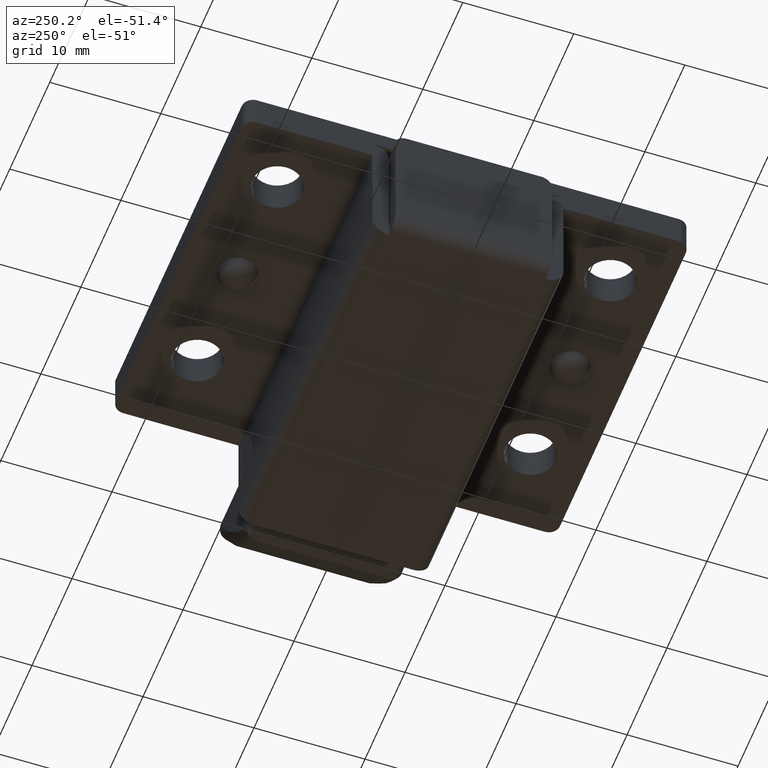
[diagram: clean part render]
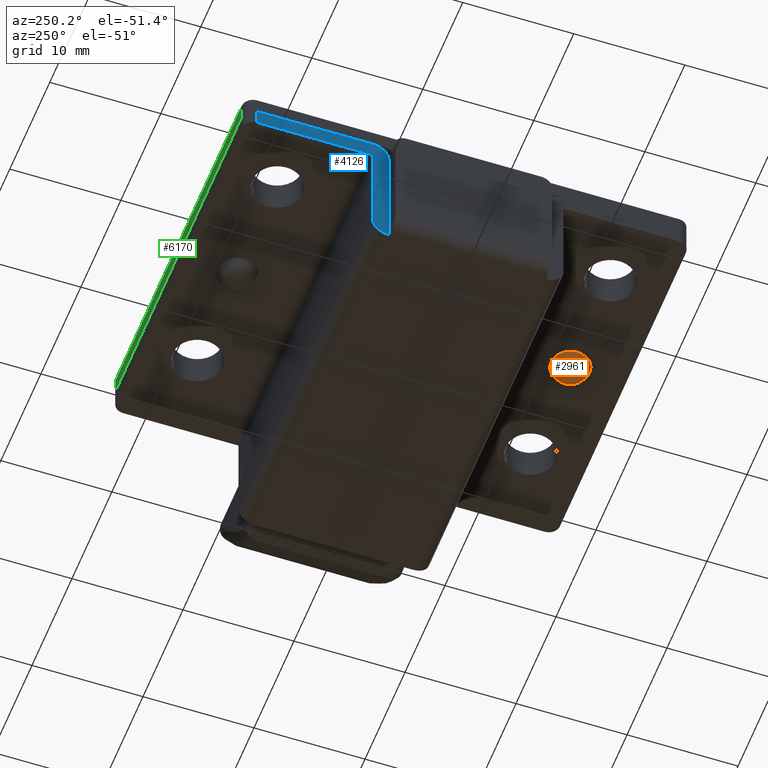
[diagram: same view with three faces highlighted in distinct colors, each labeled with its STEP entity id]
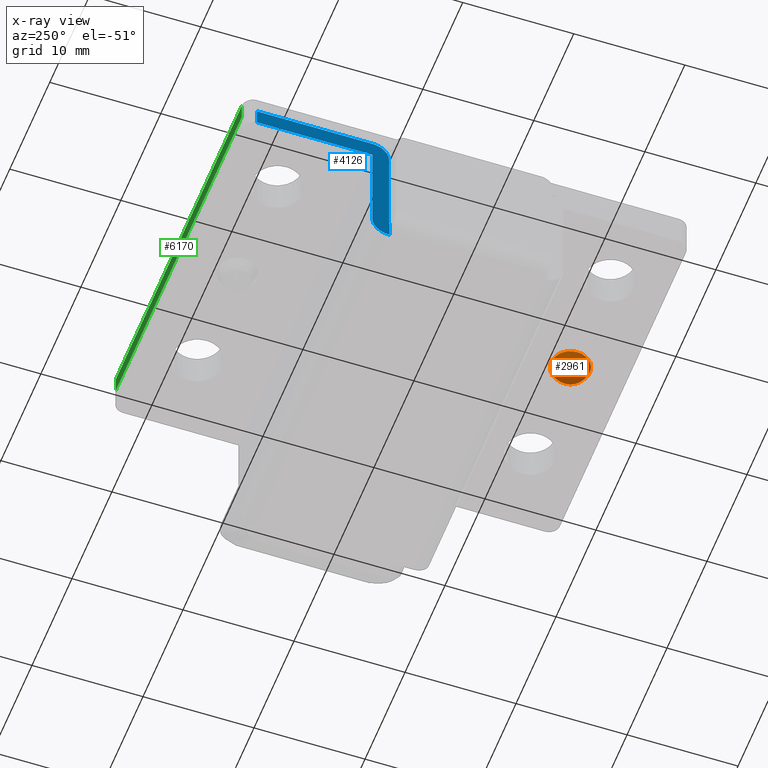
[diagram: x-ray of the same camera — body ghosted, the three highlighted faces saturated]
A machine part, auxiliary view with three faces highlighted in distinct colors.
The next image is the same camera in x-ray (body ghosted, the three faces saturated) — at least one of them is partly hidden behind the body in this view.
Their STEP definitions:

[orange] entity #2961 — the highlighted face is a freeform B-spline surface patch.
#2887=CARTESIAN_POINT('',(-18.825397734370263,-13.674602265603189,10.954616639434517));
#2888=CARTESIAN_POINT('',(-18.396109184514085,-13.207781630918729,10.321527777888795));
#2889=CARTESIAN_POINT('',(-16.603890815432813,-13.207781630918729,10.321527777888795));
#2890=CARTESIAN_POINT('',(-16.174602265576638,-13.674602265603189,10.954616639434517));
#2891=CARTESIAN_POINT('',(-19.292218369054726,-14.103890815459364,10.321527777888795));
#2892=CARTESIAN_POINT('',(-18.883336549900349,-13.616663450073100,8.999999999774133));
#2893=CARTESIAN_POINT('',(-16.116663450046548,-13.616663450073100,8.999999999774133));
#2894=CARTESIAN_POINT('',(-15.707781630892180,-14.103890815459364,10.321527777888795));
#2895=CARTESIAN_POINT('',(-19.292218369054726,-15.896109184540634,10.321527777888795));
#2896=CARTESIAN_POINT('',(-18.883336549900349,-16.383336549926899,8.999999999774133));
#2897=CARTESIAN_POINT('',(-16.116663450046548,-16.383336549926899,8.999999999774133));
#2898=CARTESIAN_POINT('',(-15.707781630892180,-15.896109184540634,10.321527777888795));
#2899=CARTESIAN_POINT('',(-18.825397734370263,-16.325397734396812,10.954616639434517));
#2900=CARTESIAN_POINT('',(-18.396109184514085,-16.792218369081269,10.321527777888795));
#2901=CARTESIAN_POINT('',(-16.603890815432813,-16.792218369081269,10.321527777888795));
#2902=CARTESIAN_POINT('',(-16.174602265576638,-16.325397734396812,10.954616639434517));
#2910=(BOUNDED_SURFACE()B_SPLINE_SURFACE(2,2,((#2887,#2891,#2895,#2899),(#2888,#2892,#2896,#2900),(#2889,#2893,#2897,#2901),(#2890,#2894,#2898,#2902)),.UNSPECIFIED.,.F.,.F.,.U.)B_SPLINE_SURFACE_WITH_KNOTS((3,1,3),(3,1,3),(0.0,2.175301774384770,4.350603548769541),(0.0,2.175301774384765,4.350603548769531),.UNSPECIFIED.)GEOMETRIC_REPRESENTATION_ITEM()RATIONAL_B_SPLINE_SURFACE(((2.087428571856516,1.543714285928258,1.543714285928258,2.087428571856516),(1.543714285928258,1.0,1.0,1.543714285928258),(1.543714285928258,1.0,1.0,1.543714285928258),(2.087428571856516,1.543714285928258,1.543714285928258,2.087428571856516)))REPRESENTATION_ITEM('')SURFACE());
#2911=CARTESIAN_POINT('',(-19.250000000110091,-15.0,10.200000000127860));
#2912=VERTEX_POINT('',#2911);
#2913=CARTESIAN_POINT('',(-15.749999999836810,-15.0,10.200000000127860));
#2914=VERTEX_POINT('',#2913);
#2915=CARTESIAN_POINT('',(-19.250000000110091,-15.0,10.200000000127860));
#2916=CARTESIAN_POINT('',(-19.250099159165352,-14.821021936544470,10.200000000127879));
#2917=CARTESIAN_POINT('',(-19.211216515899249,-14.570534495470170,10.200000000127860));
#2918=CARTESIAN_POINT('',(-19.079563407552332,-14.229265886697840,10.200000000127860));
#2919=CARTESIAN_POINT('',(-18.949172807378162,-14.005542339136390,10.200000000127860));
#2920=CARTESIAN_POINT('',(-18.758076828085422,-13.772680964446200,10.200000000127870));
#2921=CARTESIAN_POINT('',(-18.547912958300859,-13.586854990160051,10.200000000127870));
#2922=CARTESIAN_POINT('',(-18.247206145103839,-13.404079901530100,10.200000000127780));
#2923=CARTESIAN_POINT('',(-17.880505770191590,-13.272836258294310,10.200000000128060));
#2924=CARTESIAN_POINT('',(-17.513944416001092,-13.239028647206400,10.200000000127890));
#2925=CARTESIAN_POINT('',(-17.178489866207101,-13.272093701276200,10.200000000127890));
#2926=CARTESIAN_POINT('',(-16.851558375899721,-13.358212844464751,10.200000000127840));
#2927=CARTESIAN_POINT('',(-16.519456212429940,-13.533121842772010,10.200000000127771));
#2928=CARTESIAN_POINT('',(-16.218475015851588,-13.789561175848560,10.200000000128069));
#2929=CARTESIAN_POINT('',(-16.011710547082849,-14.057879985148320,10.200000000127799));
#2930=CARTESIAN_POINT('',(-15.865013984579161,-14.353876331886850,10.200000000127719));
#2931=CARTESIAN_POINT('',(-15.773240115499821,-14.656403775331381,10.200000000128220));
#2932=CARTESIAN_POINT('',(-15.749983760133359,-14.878309575431230,10.200000000127650));
#2933=CARTESIAN_POINT('',(-15.749999999836810,-15.0,10.200000000127860));
#2934=B_SPLINE_CURVE_WITH_KNOTS('',3,(#2915,#2916,#2917,#2918,#2919,#2920,#2921,#2922,#2923,#2924,#2925,#2926,#2927,#2928,#2929,#2930,#2931,#2932,#2933),.UNSPECIFIED.,.F.,.U.,(4,1,1,1,1,1,1,1,1,1,1,1,1,1,1,1,4),(0.000000160079979,0.536890775910660,0.751653891918446,1.095262674586500,1.310027415817633,1.653646700179849,1.932842878099841,2.362352012072886,2.813337115565695,3.028071031112359,3.371691284798115,3.822702788800471,4.144842982188858,4.552887468905427,4.832075191624460,5.132752333328236,5.497821640538665),.UNSPECIFIED.);
#2935=EDGE_CURVE('',#2912,#2914,#2934,.T.);
#2936=ORIENTED_EDGE('',*,*,#2935,.T.);
#2937=CARTESIAN_POINT('',(-15.749999999836810,-15.0,10.200000000127860));
#2938=CARTESIAN_POINT('',(-15.749967358048311,-15.136008052057900,10.200000000127851));
#2939=CARTESIAN_POINT('',(-15.775171223657191,-15.350747030745261,10.200000000127870));
#2940=CARTESIAN_POINT('',(-15.875030120366381,-15.672847215267071,10.200000000127870));
#2941=CARTESIAN_POINT('',(-15.999500644333260,-15.916393798517211,10.200000000127810));
#2942=CARTESIAN_POINT('',(-16.187489180332818,-16.169872914416729,10.200000000127959));
#2943=CARTESIAN_POINT('',(-16.384417937644251,-16.359678589533310,10.200000000127890));
#2944=CARTESIAN_POINT('',(-16.651778413289591,-16.540692348841279,10.200000000127771));
#2945=CARTESIAN_POINT('',(-16.986427840544650,-16.691563316046910,10.200000000127870));
#2946=CARTESIAN_POINT('',(-17.384903549690499,-16.763227128257370,10.200000000128110));
#2947=CARTESIAN_POINT('',(-17.751066545719709,-16.740665168950631,10.200000000127799));
#2948=CARTESIAN_POINT('',(-18.079304898233900,-16.662737374976949,10.200000000127959));
#2949=CARTESIAN_POINT('',(-18.421018816598849,-16.508787999130259,10.200000000127670));
#2950=CARTESIAN_POINT('',(-18.726819047831491,-16.267089318202050,10.200000000127920));
#2951=CARTESIAN_POINT('',(-18.968387552582890,-15.972696970061840,10.200000000127890));
#2952=CARTESIAN_POINT('',(-19.134773063512419,-15.661456065187251,10.200000000127851));
#2953=CARTESIAN_POINT('',(-19.230895633471860,-15.322126129334000,10.200000000127810));
#2954=CARTESIAN_POINT('',(-19.250005194026400,-15.100212036169030,10.200000000128140));
#2955=CARTESIAN_POINT('',(-19.250000000110091,-15.0,10.200000000127860));
#2956=B_SPLINE_CURVE_WITH_KNOTS('',3,(#2937,#2938,#2939,#2940,#2941,#2942,#2943,#2944,#2945,#2946,#2947,#2948,#2949,#2950,#2951,#2952,#2953,#2954,#2955),.UNSPECIFIED.,.F.,.U.,(4,1,1,1,1,1,1,1,1,1,1,1,1,1,1,1,4),(0.000000160028947,0.408016138829240,0.644271724914073,1.009362766803014,1.224124799213195,1.589217516863872,1.825461278009426,2.190540907664838,2.684490121797868,3.028071031085664,3.285804943635785,3.693837919279981,4.144842982173977,4.445507956506480,4.832075191617210,5.197183024116958,5.497821640538918),.UNSPECIFIED.);
#2957=EDGE_CURVE('',#2914,#2912,#2956,.T.);
#2958=ORIENTED_EDGE('',*,*,#2957,.T.);
#2959=EDGE_LOOP('',(#2936,#2958));
#2960=FACE_OUTER_BOUND('',#2959,.T.);
#2961=ADVANCED_FACE('',(#2960),#2910,.T.);

[blue] entity #4126 — the highlighted face is a freeform B-spline surface patch.
#3412=CARTESIAN_POINT('',(-33.500000000083013,8.600000000000000,10.199999999999999));
#3413=VERTEX_POINT('',#3412);
#3419=CARTESIAN_POINT('',(-33.500000000083013,18.999999999920799,10.199999999999999));
#3420=VERTEX_POINT('',#3419);
#3421=CARTESIAN_POINT('',(-33.500000000083013,18.999999999920799,10.199999999999999));
#3422=CARTESIAN_POINT('',(-33.500000000083013,8.600000000000000,10.199999999999999));
#3423=QUASI_UNIFORM_CURVE('',1,(#3421,#3422),.UNSPECIFIED.,.F.,.U.);
#3424=EDGE_CURVE('',#3420,#3413,#3423,.T.);
#3597=CARTESIAN_POINT('',(-33.500000000083013,18.999999999920750,11.699999999855221));
#3598=VERTEX_POINT('',#3597);
#3618=CARTESIAN_POINT('',(-33.500000000083013,18.999999999920750,11.699999999855221));
#3619=CARTESIAN_POINT('',(-33.500000000083013,18.999999999920799,10.199999999999999));
#3620=QUASI_UNIFORM_CURVE('',1,(#3618,#3619),.UNSPECIFIED.,.F.,.U.);
#3621=EDGE_CURVE('',#3598,#3420,#3620,.T.);
#3735=CARTESIAN_POINT('',(-33.500000000083013,8.599999999855099,11.699999999855221));
#3736=VERTEX_POINT('',#3735);
#3742=CARTESIAN_POINT('',(-33.500000000083013,7.100000000000001,10.199999999999999));
#3743=VERTEX_POINT('',#3742);
#3744=CARTESIAN_POINT('',(-33.500000000083013,7.099999999999994,10.199999999999999));
#3745=CARTESIAN_POINT('',(-33.500000000083006,7.099999999999995,11.699999999855104));
#3746=CARTESIAN_POINT('',(-33.500000000083013,8.599999999855099,11.699999999855100));
#3754=(BOUNDED_CURVE()B_SPLINE_CURVE(2,(#3744,#3745,#3746),.UNSPECIFIED.,.F.,.U.)CURVE()GEOMETRIC_REPRESENTATION_ITEM()QUASI_UNIFORM_CURVE()RATIONAL_B_SPLINE_CURVE((1.0,0.707106781186548,1.0))REPRESENTATION_ITEM(''));
#3755=EDGE_CURVE('',#3743,#3736,#3754,.T.);
#3835=CARTESIAN_POINT('',(-33.500000000083013,7.100000000000001,0.0));
#3836=VERTEX_POINT('',#3835);
#3842=CARTESIAN_POINT('',(-33.500000000083013,8.600000000000000,1.500000000000000));
#3843=VERTEX_POINT('',#3842);
#3844=CARTESIAN_POINT('',(-33.500000000083013,8.600000000000000,1.500000000000000));
#3845=CARTESIAN_POINT('',(-33.500000000083006,8.600000000000000,0.0));
#3846=CARTESIAN_POINT('',(-33.500000000083013,7.100000000000001,0.0));
#3854=(BOUNDED_CURVE()B_SPLINE_CURVE(2,(#3844,#3845,#3846),.UNSPECIFIED.,.F.,.U.)CURVE()GEOMETRIC_REPRESENTATION_ITEM()QUASI_UNIFORM_CURVE()RATIONAL_B_SPLINE_CURVE((1.0,0.707106781186548,1.0))REPRESENTATION_ITEM(''));
#3855=EDGE_CURVE('',#3843,#3836,#3854,.T.);
#3887=CARTESIAN_POINT('',(-33.500000000083148,7.050000000000000,0.0));
#3888=VERTEX_POINT('',#3887);
#3918=CARTESIAN_POINT('',(-33.500000000083013,7.050000000000000,1.500000000000000));
#3919=VERTEX_POINT('',#3918);
#3960=CARTESIAN_POINT('',(-33.500000000083148,7.050000000000000,0.0));
#3961=CARTESIAN_POINT('',(-33.500000000083013,7.050000000000000,1.500000000000000));
#3962=QUASI_UNIFORM_CURVE('',1,(#3960,#3961),.UNSPECIFIED.,.F.,.U.);
#3963=EDGE_CURVE('',#3888,#3919,#3962,.T.);
#4022=CARTESIAN_POINT('',(-33.500000000083013,7.100000000000001,1.500000000000000));
#4023=VERTEX_POINT('',#4022);
#4024=CARTESIAN_POINT('',(-33.500000000083013,7.100000000000001,1.500000000000000));
#4025=CARTESIAN_POINT('',(-33.500000000083013,7.100000000000001,10.199999999999999));
#4026=QUASI_UNIFORM_CURVE('',1,(#4024,#4025),.UNSPECIFIED.,.F.,.U.);
#4027=EDGE_CURVE('',#4023,#3743,#4026,.T.);
#4046=CARTESIAN_POINT('',(-33.500000000083013,7.050000000000000,1.500000000000000));
#4047=CARTESIAN_POINT('',(-33.500000000083013,7.100000000000001,1.500000000000000));
#4048=QUASI_UNIFORM_CURVE('',1,(#4046,#4047),.UNSPECIFIED.,.F.,.U.);
#4049=EDGE_CURVE('',#3919,#4023,#4048,.T.);
#4060=CARTESIAN_POINT('',(-33.500000000083013,7.100000000000001,0.0));
#4061=CARTESIAN_POINT('',(-33.500000000083148,7.050000000000000,0.0));
#4062=QUASI_UNIFORM_CURVE('',1,(#4060,#4061),.UNSPECIFIED.,.F.,.U.);
#4063=EDGE_CURVE('',#3836,#3888,#4062,.T.);
#4080=CARTESIAN_POINT('',(-33.500000000083013,8.600000000000000,10.199999999999999));
#4081=CARTESIAN_POINT('',(-33.500000000083013,8.600000000000000,1.500000000000000));
#4082=QUASI_UNIFORM_CURVE('',1,(#4080,#4081),.UNSPECIFIED.,.F.,.U.);
#4083=EDGE_CURVE('',#3413,#3843,#4082,.T.);
#4105=CARTESIAN_POINT('',(-33.500000000083013,19.596902476755432,12.284414977171121));
#4106=CARTESIAN_POINT('',(-33.500000000083013,6.453097202641397,12.284414977171121));
#4107=CARTESIAN_POINT('',(-33.500000000083013,19.596902476755432,-0.584415291134352));
#4108=CARTESIAN_POINT('',(-33.500000000083013,6.453097202641397,-0.584415291134352));
#4109=B_SPLINE_SURFACE_WITH_KNOTS('',1,1,((#4105,#4107),(#4106,#4108)),.UNSPECIFIED.,.F.,.F.,.U.,(2,2),(2,2),(0.0,13.143805274114030),(0.0,12.868830268305469),.UNSPECIFIED.);
#4110=CARTESIAN_POINT('',(-33.500000000083013,8.599999999855099,11.699999999855221));
#4111=CARTESIAN_POINT('',(-33.500000000083013,18.999999999920750,11.699999999855221));
#4112=QUASI_UNIFORM_CURVE('',1,(#4110,#4111),.UNSPECIFIED.,.F.,.U.);
#4113=EDGE_CURVE('',#3736,#3598,#4112,.T.);
#4114=ORIENTED_EDGE('',*,*,#4113,.T.);
#4115=ORIENTED_EDGE('',*,*,#3621,.T.);
#4116=ORIENTED_EDGE('',*,*,#3424,.T.);
#4117=ORIENTED_EDGE('',*,*,#4083,.T.);
#4118=ORIENTED_EDGE('',*,*,#3855,.T.);
#4119=ORIENTED_EDGE('',*,*,#4063,.T.);
#4120=ORIENTED_EDGE('',*,*,#3963,.T.);
#4121=ORIENTED_EDGE('',*,*,#4049,.T.);
#4122=ORIENTED_EDGE('',*,*,#4027,.T.);
#4123=ORIENTED_EDGE('',*,*,#3755,.T.);
#4124=EDGE_LOOP('',(#4114,#4115,#4116,#4117,#4118,#4119,#4120,#4121,#4122,#4123));
#4125=FACE_OUTER_BOUND('',#4124,.T.);
#4126=ADVANCED_FACE('',(#4125),#4109,.F.);

[green] entity #6170 — the highlighted face is a freeform B-spline surface patch.
#5786=CARTESIAN_POINT('',(-32.500000000008853,20.0,11.699999999616900));
#5787=VERTEX_POINT('',#5786);
#5801=CARTESIAN_POINT('',(-0.999999999959187,20.0,11.699999999616900));
#5802=VERTEX_POINT('',#5801);
#5803=CARTESIAN_POINT('',(-32.500000000008853,20.0,11.699999999616900));
#5804=CARTESIAN_POINT('',(-0.999999999959187,20.0,11.699999999616900));
#5805=QUASI_UNIFORM_CURVE('',1,(#5803,#5804),.UNSPECIFIED.,.F.,.U.);
#5806=EDGE_CURVE('',#5787,#5802,#5805,.T.);
#5964=CARTESIAN_POINT('',(-0.999999999959187,20.0,13.199999999618299));
#5965=VERTEX_POINT('',#5964);
#5979=CARTESIAN_POINT('',(-32.500000000008853,20.0,13.199999999618299));
#5980=VERTEX_POINT('',#5979);
#5981=CARTESIAN_POINT('',(-32.500000000008853,20.0,13.199999999618299));
#5982=CARTESIAN_POINT('',(-0.999999999959187,20.0,13.199999999618299));
#5983=QUASI_UNIFORM_CURVE('',1,(#5981,#5982),.UNSPECIFIED.,.F.,.U.);
#5984=EDGE_CURVE('',#5980,#5965,#5983,.T.);
#6145=CARTESIAN_POINT('',(-0.999999999959187,20.0,13.199999999618299));
#6146=CARTESIAN_POINT('',(-0.999999999959187,20.0,11.699999999616900));
#6147=QUASI_UNIFORM_CURVE('',1,(#6145,#6146),.UNSPECIFIED.,.F.,.U.);
#6148=EDGE_CURVE('',#5965,#5802,#6147,.T.);
#6155=CARTESIAN_POINT('',(-34.073424938958212,20.0,11.625075002524120));
#6156=CARTESIAN_POINT('',(-34.073424938958212,20.0,13.274925036944211));
#6157=CARTESIAN_POINT('',(0.573425783886021,20.0,11.625075002524120));
#6158=CARTESIAN_POINT('',(0.573425783886021,20.0,13.274925036944211));
#6159=B_SPLINE_SURFACE_WITH_KNOTS('',1,1,((#6155,#6157),(#6156,#6158)),.UNSPECIFIED.,.F.,.F.,.U.,(2,2),(2,2),(0.041708334948495,0.958291687403247),(0.0,34.646850722844242),.UNSPECIFIED.);
#6160=ORIENTED_EDGE('',*,*,#5806,.F.);
#6161=CARTESIAN_POINT('',(-32.500000000008853,20.0,13.199999999618299));
#6162=CARTESIAN_POINT('',(-32.500000000008853,20.0,11.699999999616900));
#6163=QUASI_UNIFORM_CURVE('',1,(#6161,#6162),.UNSPECIFIED.,.F.,.U.);
#6164=EDGE_CURVE('',#5980,#5787,#6163,.T.);
#6165=ORIENTED_EDGE('',*,*,#6164,.F.);
#6166=ORIENTED_EDGE('',*,*,#5984,.T.);
#6167=ORIENTED_EDGE('',*,*,#6148,.T.);
#6168=EDGE_LOOP('',(#6160,#6165,#6166,#6167));
#6169=FACE_OUTER_BOUND('',#6168,.T.);
#6170=ADVANCED_FACE('',(#6169),#6159,.T.);